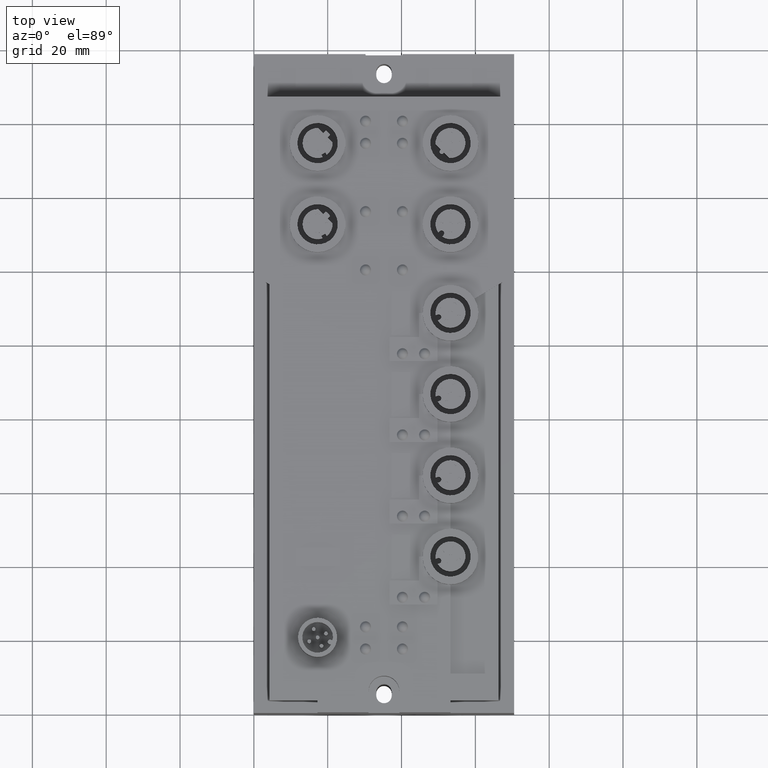
[diagram: clean part render]
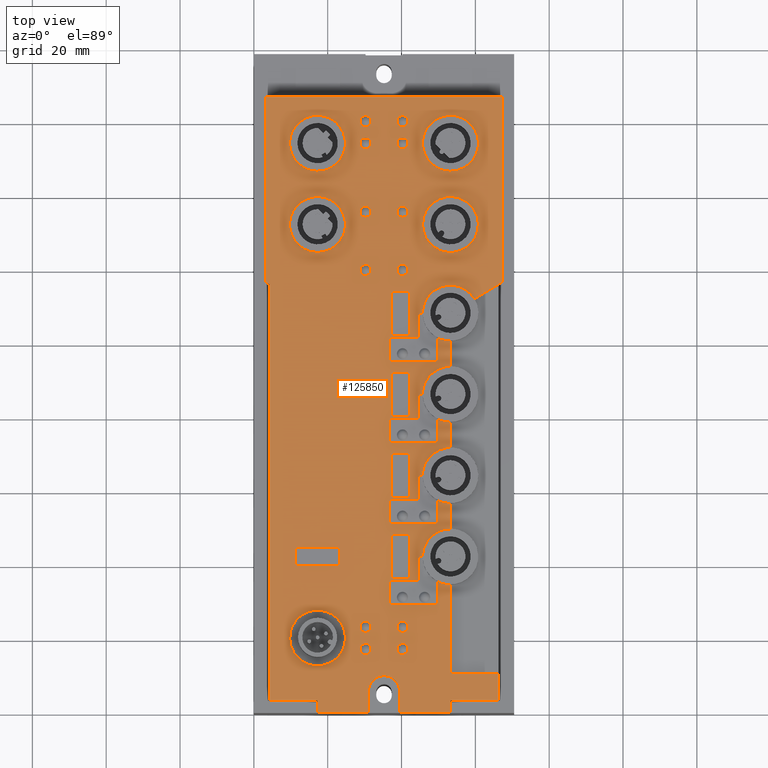
[diagram: same view with one face highlighted and labeled with its STEP entity id]
A machine part, top view. The second image highlights one B-rep face of the part: STEP entity #125850.
In plain terms, the highlighted planar face has unit normal (0, 0, -1).
Its self-contained STEP definition (entity closure, byte-faithful):
#2310=CARTESIAN_POINT('',(-28.,0.,3.93498908969668E-12));
#2320=DIRECTION('',(0.,-1.,-4.91276825878505E-14));
#2330=VECTOR('',#2320,1.);
#2340=LINE('',#2310,#2330);
#2350=CARTESIAN_POINT('',(-28.,-170.439730936293,-4.10771924135032E-12))
;
#2360=VERTEX_POINT('',#2350);
#2370=CARTESIAN_POINT('',(-28.,-176.75,-4.74911286628322E-12));
#2380=VERTEX_POINT('',#2370);
#2390=EDGE_CURVE('',#2360,#2380,#2340,.T.);
#5130=CARTESIAN_POINT('',(-35.9999999999976,-182.75,
-5.50504086760384E-12));
#5140=VERTEX_POINT('',#5130);
#5170=CARTESIAN_POINT('',(-39.0000000000026,-182.75,
-5.67479396806903E-12));
#5180=VERTEX_POINT('',#5170);
#5210=CARTESIAN_POINT('',(-37.5000000000001,-182.75,
-5.59030599589505E-12));
#5220=DIRECTION('',(5.76021672006006E-14,4.91276825878505E-14,-1.));
#5230=DIRECTION('',(1.,0.,5.76021672006006E-14));
#5240=AXIS2_PLACEMENT_3D('',#5210,#5220,#5230);
#5250=CIRCLE('',#5240,1.50000000000249);
#5260=EDGE_CURVE('',#5180,#5140,#5250,.T.);
#5430=CARTESIAN_POINT('',(0.,-170.25,-2.81613818926805E-12));
#5440=DIRECTION('',(1.,0.,5.76021672006006E-14));
#5450=VECTOR('',#5440,1.);
#5460=LINE('',#5430,#5450);
#5470=CARTESIAN_POINT('',(-41.,-170.25,-5.17861110307001E-12));
#5480=VERTEX_POINT('',#5470);
#5490=CARTESIAN_POINT('',(-33.0625113364745,-170.25,
-4.72139455392074E-12));
#5500=VERTEX_POINT('',#5490);
#5510=EDGE_CURVE('',#5480,#5500,#5460,.T.);
#5960=CARTESIAN_POINT('',(-18.0259284108704,-93.8655570465218,
-1.03685239121937E-13));
#5970=VERTEX_POINT('',#5960);
#6000=CARTESIAN_POINT('',(0.,-83.0499999999995,1.46779573239254E-12));
#6010=DIRECTION('',(-0.857492925712543,-0.514495755427529,
-7.4718009557273E-14));
#6020=VECTOR('',#6010,1.);
#6030=LINE('',#6000,#6020);
#6040=CARTESIAN_POINT('',(-10.5,-89.3499999999995,5.52089723060403E-13))
;
#6050=VERTEX_POINT('',#6040);
#6060=EDGE_CURVE('',#6050,#5970,#6030,.T.);
#7520=CARTESIAN_POINT('',(-24.5,0.,4.13659667489879E-12));
#7530=DIRECTION('',(0.,-1.,-4.91276825878505E-14));
#7540=VECTOR('',#7530,1.);
#7550=LINE('',#7520,#7540);
#7560=CARTESIAN_POINT('',(-24.5,-105.3,-1.03733236017919E-12));
#7570=VERTEX_POINT('',#7560);
#7580=CARTESIAN_POINT('',(-24.5,-112.2,-1.37631337003536E-12));
#7590=VERTEX_POINT('',#7580);
#7600=EDGE_CURVE('',#7570,#7590,#7550,.T.);
#10630=CARTESIAN_POINT('',(-33.0625113364745,-163.75,
-4.40206461709971E-12));
#10640=VERTEX_POINT('',#10630);
#10670=CARTESIAN_POINT('',(0.,-163.75,-2.49680825244702E-12));
#10680=DIRECTION('',(-1.,0.,-5.76021672006006E-14));
#10690=VECTOR('',#10680,1.);
#10700=LINE('',#10670,#10690);
#10710=CARTESIAN_POINT('',(-32.05,-163.75,-4.3437417698036E-12));
#10720=VERTEX_POINT('',#10710);
#10730=EDGE_CURVE('',#10720,#10640,#10700,.T.);
#11100=CARTESIAN_POINT('',(-33.0625113364745,-141.75,-3.321255600167E-12
));
#11110=VERTEX_POINT('',#11100);
#11140=CARTESIAN_POINT('',(0.,-141.75,-1.41599923551431E-12));
#11150=DIRECTION('',(-1.,0.,-5.76021672006006E-14));
#11160=VECTOR('',#11150,1.);
#11170=LINE('',#11140,#11160);
#11180=CARTESIAN_POINT('',(-32.05,-141.75,-2.99280606509251E-12));
#11190=VERTEX_POINT('',#11180);
#11200=EDGE_CURVE('',#11190,#11110,#11170,.T.);
#13950=CARTESIAN_POINT('',(-63.6907678761421,-178.907376207873,
-6.53210818768457E-12));
#13960=VERTEX_POINT('',#13950);
#13990=CARTESIAN_POINT('',(-60.4999999999998,-185.75,
-7.06257274885047E-12));
#14000=DIRECTION('',(1.22464679914825E-16,-7.75792454347579E-14,1.));
#14010=DIRECTION('',(-0.422618261740701,0.906307787036649,
7.03624300600987E-14));
#14020=AXIS2_PLACEMENT_3D('',#13990,#14000,#14010);
#14030=CIRCLE('',#14020,7.54999999999999);
#14040=CARTESIAN_POINT('',(-57.3092321238575,-192.592623792127,
-7.59381446613361E-12));
#14050=VERTEX_POINT('',#14040);
#14060=EDGE_CURVE('',#14050,#13960,#14030,.T.);
#14980=CARTESIAN_POINT('',(-24.5,-171.3,-4.04710226463371E-12));
#14990=VERTEX_POINT('',#14980);
#15140=CARTESIAN_POINT('',(-24.5,-195.475,-5.46742113753862E-12));
#15150=VERTEX_POINT('',#15140);
#15180=CARTESIAN_POINT('',(-24.5,0.,4.13659667489879E-12));
#15190=DIRECTION('',(0.,-1.,-4.91276825878505E-14));
#15200=VECTOR('',#15190,1.);
#15210=LINE('',#15180,#15200);
#15220=EDGE_CURVE('',#14990,#15150,#15210,.T.);
#21990=CARTESIAN_POINT('',(-38.3,-200.175,-6.49323115306981E-12));
#22000=VERTEX_POINT('',#21990);
#22030=CARTESIAN_POINT('',(-38.3,0.,3.3416867675305E-12));
#22040=DIRECTION('',(0.,1.,4.91276825878505E-14));
#22050=VECTOR('',#22040,1.);
#22060=LINE('',#22030,#22050);
#22070=CARTESIAN_POINT('',(-38.3,-205.925,-6.77571532794995E-12));
#22080=VERTEX_POINT('',#22070);
#22090=EDGE_CURVE('',#22080,#22000,#22060,.T.);
#25340=CARTESIAN_POINT('',(-46.7,-205.925,-7.259573532435E-12));
#25350=VERTEX_POINT('',#25340);
#25400=CARTESIAN_POINT('',(-46.7,0.,2.85782856304545E-12));
#25410=DIRECTION('',(0.,1.,4.91276825878505E-14));
#25420=VECTOR('',#25410,1.);
#25430=LINE('',#25400,#25420);
#25440=CARTESIAN_POINT('',(-46.7,-200.175,-6.73416877816635E-12));
#25450=VERTEX_POINT('',#25440);
#25460=EDGE_CURVE('',#25350,#25450,#25430,.T.);
#26570=CARTESIAN_POINT('',(-24.5,-141.75,-2.82729395451042E-12));
#26580=DIRECTION('',(-2.18191992668667E-14,-1.83084820574114E-14,1.));
#26590=DIRECTION('',(-0.90630778703665,0.4226182617407,
-1.20374113402516E-14));
#26600=AXIS2_PLACEMENT_3D('',#26570,#26580,#26590);
#26610=CIRCLE('',#26600,7.55);
#26620=CARTESIAN_POINT('',(-31.3426237921267,-138.559232123858,
-2.91822122022722E-12));
#26630=VERTEX_POINT('',#26620);
#26640=EDGE_CURVE('',#26630,#11190,#26610,.T.);
#28060=CARTESIAN_POINT('',(-24.5,-149.3,-2.96630015016112E-12));
#28070=VERTEX_POINT('',#28060);
#28100=CARTESIAN_POINT('',(-28.,-148.439730936293,-3.02691712687773E-12)
);
#28110=VERTEX_POINT('',#28100);
#28120=EDGE_CURVE('',#28110,#28070,#26610,.T.);
#30080=CARTESIAN_POINT('',(-33.0625113364745,-148.25,
-3.64058553698802E-12));
#30090=VERTEX_POINT('',#30080);
#30120=CARTESIAN_POINT('',(-33.0625113364745,0.,3.64337746523814E-12));
#30130=DIRECTION('',(0.,1.,4.91276825878505E-14));
#30140=VECTOR('',#30130,1.);
#30150=LINE('',#30120,#30140);
#30160=EDGE_CURVE('',#30090,#11110,#30150,.T.);
#30400=CARTESIAN_POINT('',(0.,-148.25,-1.73532917233534E-12));
#30410=DIRECTION('',(1.,0.,5.76021672006006E-14));
#30420=VECTOR('',#30410,1.);
#30430=LINE('',#30400,#30420);
#30440=CARTESIAN_POINT('',(-41.,-148.25,-4.09780208613729E-12));
#30450=VERTEX_POINT('',#30440);
#30460=EDGE_CURVE('',#30450,#30090,#30430,.T.);
#32170=CARTESIAN_POINT('',(-11.5,-202.675,-5.07231227856334E-12));
#32180=VERTEX_POINT('',#32170);
#32210=CARTESIAN_POINT('',(-11.5,0.,4.88542484850659E-12));
#32220=DIRECTION('',(-8.64591552122229E-28,1.,4.91276825878505E-14));
#32230=VECTOR('',#32220,1.);
#32240=LINE('',#32210,#32230);
#32250=CARTESIAN_POINT('',(-11.5,-195.475,-4.71859296393082E-12));
#32260=VERTEX_POINT('',#32250);
#32270=EDGE_CURVE('',#32180,#32260,#32240,.T.);
#33650=CARTESIAN_POINT('',(-60.4999999999997,-81.2999999999991,
-2.22488694134881E-12));
#33660=VERTEX_POINT('',#33650);
#33690=CARTESIAN_POINT('',(-60.4999999999997,-73.7499999999991,
-1.5603074388082E-12));
#33700=DIRECTION('',(3.28966126188549E-14,8.79173053052295E-14,-1.));
#33710=DIRECTION('',(-1.22464679913289E-16,-1.,-8.79173053052295E-14));
#33720=AXIS2_PLACEMENT_3D('',#33690,#33700,#33710);
#33730=CIRCLE('',#33720,7.54999999999999);
#33740=CARTESIAN_POINT('',(-60.4999999999997,-66.1999999999991,
-8.96505092384814E-13));
#33750=VERTEX_POINT('',#33740);
#33760=EDGE_CURVE('',#33660,#33750,#33730,.T.);
#37980=CARTESIAN_POINT('',(-54.4999999999986,0.,2.43733274248115E-12));
#37990=DIRECTION('',(-1.83697019872103E-16,-1.,-4.91276825878505E-14));
#38000=VECTOR('',#37990,1.);
#38010=LINE('',#37980,#38000);
#38020=CARTESIAN_POINT('',(-54.4999999999987,-161.25,
-5.51409121698737E-12));
#38030=VERTEX_POINT('',#38020);
#38040=CARTESIAN_POINT('',(-54.4999999999987,-166.25,
-5.75972962992662E-12));
#38050=VERTEX_POINT('',#38040);
#38060=EDGE_CURVE('',#38030,#38050,#38010,.T.);
#40210=CARTESIAN_POINT('',(-24.5000000000001,-44.1999999999995,
1.59339208494202E-12));
#40220=VERTEX_POINT('',#40210);
#40250=CARTESIAN_POINT('',(-24.5000000000001,-51.7499999999995,
1.59416924105926E-12));
#40260=DIRECTION('',(0.,0.,-1.));
#40270=DIRECTION('',(0.,1.,0.));
#40280=AXIS2_PLACEMENT_3D('',#40250,#40260,#40270);
#40290=CIRCLE('',#40280,7.54999999999999);
#40300=CARTESIAN_POINT('',(-24.5000000000001,-59.2999999999995,
1.59416924105926E-12));
#40310=VERTEX_POINT('',#40300);
#40320=EDGE_CURVE('',#40220,#40310,#40290,.T.);
#43730=CARTESIAN_POINT('',(-31.3426237921267,-94.5592321238575,
-7.56616991282044E-13));
#43740=VERTEX_POINT('',#43730);
#45010=CARTESIAN_POINT('',(-24.5,-97.7499999999998,-6.65689725565244E-13
));
#45020=DIRECTION('',(-2.18191992668667E-14,-1.83084820574114E-14,1.));
#45030=DIRECTION('',(-0.90630778703665,0.4226182617407,
-1.20374113402516E-14));
#45040=AXIS2_PLACEMENT_3D('',#45010,#45020,#45030);
#45050=CIRCLE('',#45040,7.55);
#45060=CARTESIAN_POINT('',(-28.,-104.439730936293,-8.65312897932552E-13)
);
#45070=VERTEX_POINT('',#45060);
#45080=EDGE_CURVE('',#45070,#7570,#45050,.T.);
#45310=CARTESIAN_POINT('',(-32.05,-97.75,-1.10131471900546E-12));
#45320=VERTEX_POINT('',#45310);
#45350=EDGE_CURVE('',#43740,#45320,#45050,.T.);
#49210=CARTESIAN_POINT('',(-41.,0.,3.18616091608887E-12));
#49220=DIRECTION('',(0.,-1.,-4.91276825878505E-14));
#49230=VECTOR('',#49220,1.);
#49240=LINE('',#49210,#49230);
#49250=CARTESIAN_POINT('',(-41.,-154.75,-4.41713202295832E-12));
#49260=VERTEX_POINT('',#49250);
#49270=EDGE_CURVE('',#30450,#49260,#49240,.T.);
#50570=CARTESIAN_POINT('',(0.,-154.75,-2.05465910915637E-12));
#50580=DIRECTION('',(1.,0.,5.76021672006006E-14));
#50590=VECTOR('',#50580,1.);
#50600=LINE('',#50570,#50590);
#50610=CARTESIAN_POINT('',(-28.,-154.75,-3.66830384935051E-12));
#50620=VERTEX_POINT('',#50610);
#50630=EDGE_CURVE('',#49260,#50620,#50600,.T.);
#50990=CARTESIAN_POINT('',(-41.,-176.75,-5.49794103989103E-12));
#51000=VERTEX_POINT('',#50990);
#51030=CARTESIAN_POINT('',(-41.,0.,3.18616091608887E-12));
#51040=DIRECTION('',(0.,-1.,-4.91276825878505E-14));
#51050=VECTOR('',#51040,1.);
#51060=LINE('',#51030,#51050);
#51070=EDGE_CURVE('',#5480,#51000,#51060,.T.);
#51750=CARTESIAN_POINT('',(-28.,0.,3.93498908969668E-12));
#51760=DIRECTION('',(0.,-1.,-4.91276825878505E-14));
#51770=VECTOR('',#51760,1.);
#51780=LINE('',#51750,#51770);
#51790=EDGE_CURVE('',#28110,#50620,#51780,.T.);
#52180=CARTESIAN_POINT('',(-33.0625113364745,-119.75,
-2.24044658323428E-12));
#52190=VERTEX_POINT('',#52180);
#52220=CARTESIAN_POINT('',(0.,-119.75,-3.351902185816E-13));
#52230=DIRECTION('',(-1.,0.,-5.76021672006006E-14));
#52240=VECTOR('',#52230,1.);
#52250=LINE('',#52220,#52240);
#52260=CARTESIAN_POINT('',(-32.05,-119.75,-2.18212373593817E-12));
#52270=VERTEX_POINT('',#52260);
#52280=EDGE_CURVE('',#52270,#52190,#52250,.T.);
#52550=CARTESIAN_POINT('',(-60.5000000000001,-202.675,
-7.89481847139278E-12));
#52560=VERTEX_POINT('',#52550);
#52730=CARTESIAN_POINT('',(-73.5000000000001,-202.675,
-8.64364664500058E-12));
#52740=VERTEX_POINT('',#52730);
#52770=CARTESIAN_POINT('',(0.,-202.675,-4.40910329717911E-12));
#52780=DIRECTION('',(-1.,2.29085206876182E-27,-5.76021672006006E-14));
#52790=VECTOR('',#52780,1.);
#52800=LINE('',#52770,#52790);
#52810=EDGE_CURVE('',#52560,#52740,#52800,.T.);
#53520=CARTESIAN_POINT('',(-28.,0.,3.93498908969668E-12));
#53530=DIRECTION('',(0.,-1.,-4.91276825878505E-14));
#53540=VECTOR('',#53530,1.);
#53550=LINE('',#53520,#53540);
#53560=CARTESIAN_POINT('',(-28.,-126.439730936293,-1.94611501240514E-12)
);
#53570=VERTEX_POINT('',#53560);
#53580=CARTESIAN_POINT('',(-28.,-132.75,-2.5874948324178E-12));
#53590=VERTEX_POINT('',#53580);
#53600=EDGE_CURVE('',#53570,#53590,#53550,.T.);
#54370=CARTESIAN_POINT('',(-74.5,-89.3499999999995,-3.13385418293299E-12
));
#54380=VERTEX_POINT('',#54370);
#54550=CARTESIAN_POINT('',(-74.5,-39.075,-6.63959940828834E-13));
#54560=VERTEX_POINT('',#54550);
#54590=CARTESIAN_POINT('',(-74.5,0.,1.25648831486875E-12));
#54600=DIRECTION('',(0.,1.,4.91276825878505E-14));
#54610=VECTOR('',#54600,1.);
#54620=LINE('',#54590,#54610);
#54630=EDGE_CURVE('',#54380,#54560,#54620,.T.);
#54930=CARTESIAN_POINT('',(-24.5,-202.675,-5.82114045217115E-12));
#54940=VERTEX_POINT('',#54930);
#54970=CARTESIAN_POINT('',(0.,-202.675,-4.40910329717911E-12));
#54980=DIRECTION('',(1.,-5.49047190033824E-28,5.76021672006006E-14));
#54990=VECTOR('',#54980,1.);
#55000=LINE('',#54970,#54990);
#55010=EDGE_CURVE('',#54940,#32180,#55000,.T.);
#55800=CARTESIAN_POINT('',(0.,-176.75,-3.13546812608908E-12));
#55810=DIRECTION('',(1.,0.,5.76021672006006E-14));
#55820=VECTOR('',#55810,1.);
#55830=LINE('',#55800,#55820);
#55840=EDGE_CURVE('',#51000,#2380,#55830,.T.);
#61030=CARTESIAN_POINT('',(-47.5,-188.75,-6.46116493641102E-12));
#61040=DIRECTION('',(5.76021672006006E-14,4.91276825878505E-14,-1.));
#61050=DIRECTION('',(1.,0.,5.76021672006006E-14));
#61060=AXIS2_PLACEMENT_3D('',#61030,#61040,#61050);
#61070=CIRCLE('',#61060,1.50000000000349);
#61080=CARTESIAN_POINT('',(-47.5,-190.250000000004,-6.53563361641021E-12
));
#61090=VERTEX_POINT('',#61080);
#61100=CARTESIAN_POINT('',(-49.0000000000035,-188.75,
-6.54765131002932E-12));
#61110=VERTEX_POINT('',#61100);
#61120=EDGE_CURVE('',#61090,#61110,#61070,.T.);
#61230=CARTESIAN_POINT('',(-45.9999999999965,-188.75,
-6.37723207574936E-12));
#61240=VERTEX_POINT('',#61230);
#61270=EDGE_CURVE('',#61240,#61090,#61070,.T.);
#62610=CARTESIAN_POINT('',(-42.5,-200.175,-6.73416877816635E-12));
#62620=DIRECTION('',(0.,0.,-1.));
#62630=DIRECTION('',(1.,0.,0.));
#62640=AXIS2_PLACEMENT_3D('',#62610,#62620,#62630);
#62650=CIRCLE('',#62640,4.2);
#62660=EDGE_CURVE('',#25450,#22000,#62650,.T.);
#64540=CARTESIAN_POINT('',(-33.0625113364745,0.,3.64337746523814E-12));
#64550=DIRECTION('',(0.,1.,4.91276825878505E-14));
#64560=VECTOR('',#64550,1.);
#64570=LINE('',#64540,#64560);
#64580=EDGE_CURVE('',#5500,#10640,#64570,.T.);
#66090=CARTESIAN_POINT('',(-16.95,-73.7499999999998,6.78124223441046E-13
));
#66100=VERTEX_POINT('',#66090);
#66320=CARTESIAN_POINT('',(-32.05,-73.7499999999998,3.47832873615062E-13
));
#66330=VERTEX_POINT('',#66320);
#66360=CARTESIAN_POINT('',(-24.5,-73.7499999999998,5.13367126586672E-13)
);
#66370=DIRECTION('',(-2.18191992668667E-14,-1.83084820574114E-14,1.));
#66380=DIRECTION('',(-1.,0.,-2.18191992668667E-14));
#66390=AXIS2_PLACEMENT_3D('',#66360,#66370,#66380);
#66400=CIRCLE('',#66390,7.55);
#66410=EDGE_CURVE('',#66100,#66330,#66400,.T.);
#67380=CARTESIAN_POINT('',(-10.5,-39.075,3.02257876000961E-12));
#67390=VERTEX_POINT('',#67380);
#67420=CARTESIAN_POINT('',(0.,-39.075,3.62818557419324E-12));
#67430=DIRECTION('',(-1.,0.,-5.76021672006006E-14));
#67440=VECTOR('',#67430,1.);
#67450=LINE('',#67420,#67440);
#67460=EDGE_CURVE('',#67390,#54560,#67450,.T.);
#70580=CARTESIAN_POINT('',(-66.4999999999987,-166.25,
-6.45095563633383E-12));
#70590=VERTEX_POINT('',#70580);
#70690=CARTESIAN_POINT('',(0.,-166.25,-2.61962745891664E-12));
#70700=DIRECTION('',(1.,-1.22464679914735E-16,5.76021672006006E-14));
#70710=VECTOR('',#70700,1.);
#70720=LINE('',#70690,#70710);
#70730=EDGE_CURVE('',#70590,#38050,#70720,.T.);
#71810=CARTESIAN_POINT('',(-33.0625113364745,0.,3.64337746523814E-12));
#71820=DIRECTION('',(0.,1.,4.91276825878505E-14));
#71830=VECTOR('',#71820,1.);
#71840=LINE('',#71810,#71830);
#71850=CARTESIAN_POINT('',(-33.0625113364745,-126.25,
-2.55977652005531E-12));
#71860=VERTEX_POINT('',#71850);
#71870=EDGE_CURVE('',#71860,#52190,#71840,.T.);
#72110=CARTESIAN_POINT('',(-24.5,-205.925,-5.98080542058166E-12));
#72120=VERTEX_POINT('',#72110);
#72150=CARTESIAN_POINT('',(-24.5,0.,4.13659667489879E-12));
#72160=DIRECTION('',(0.,-1.,-4.91276825878505E-14));
#72170=VECTOR('',#72160,1.);
#72180=LINE('',#72150,#72170);
#72190=EDGE_CURVE('',#54940,#72120,#72180,.T.);
#73910=CARTESIAN_POINT('',(0.,-126.25,-6.54520155402632E-13));
#73920=DIRECTION('',(-1.,0.,-5.76021672006006E-14));
#73930=VECTOR('',#73920,1.);
#73940=LINE('',#73910,#73930);
#73950=CARTESIAN_POINT('',(-41.,-126.25,-3.01699306920458E-12));
#73960=VERTEX_POINT('',#73950);
#73970=EDGE_CURVE('',#71860,#73960,#73940,.T.);
#74260=CARTESIAN_POINT('',(-33.0625113364745,-97.75,
-1.15963756630157E-12));
#74270=VERTEX_POINT('',#74260);
#74350=CARTESIAN_POINT('',(-33.0625113364745,-104.25,
-1.4789675031226E-12));
#74360=VERTEX_POINT('',#74350);
#74390=CARTESIAN_POINT('',(-33.0625113364745,0.,3.64337746523814E-12));
#74400=DIRECTION('',(0.,1.,4.91276825878505E-14));
#74410=VECTOR('',#74400,1.);
#74420=LINE('',#74390,#74410);
#74430=EDGE_CURVE('',#74360,#74270,#74420,.T.);
#81390=CARTESIAN_POINT('',(-73.5000000000001,-89.9499999999994,
-3.1057286252851E-12));
#81400=VERTEX_POINT('',#81390);
#81450=CARTESIAN_POINT('',(0.,-134.05,-1.03771607958786E-12));
#81460=DIRECTION('',(0.857492925712543,-0.514495755427529,
2.41195952099815E-14));
#81470=VECTOR('',#81460,1.);
#81480=LINE('',#81450,#81470);
#81490=EDGE_CURVE('',#54380,#81400,#81480,.T.);
#81610=CARTESIAN_POINT('',(-24.5,0.,4.13659667489879E-12));
#81620=DIRECTION('',(0.,-1.,-4.91276825878505E-14));
#81630=VECTOR('',#81620,1.);
#81640=LINE('',#81610,#81630);
#81650=CARTESIAN_POINT('',(-24.5,-156.2,-3.77064418556679E-12));
#81660=VERTEX_POINT('',#81650);
#81670=EDGE_CURVE('',#28070,#81660,#81640,.T.);
#82230=CARTESIAN_POINT('',(0.,-132.75,-9.73850092223657E-13));
#82240=DIRECTION('',(1.,0.,5.76021672006006E-14));
#82250=VECTOR('',#82240,1.);
#82260=LINE('',#82230,#82250);
#82270=CARTESIAN_POINT('',(-41.,-132.75,-3.33632300602561E-12));
#82280=VERTEX_POINT('',#82270);
#82290=EDGE_CURVE('',#82280,#53590,#82260,.T.);
#83040=CARTESIAN_POINT('',(-24.5,-119.75,-1.74649184003783E-12));
#83050=DIRECTION('',(-2.18191992668667E-14,-1.83084820574114E-14,1.));
#83060=DIRECTION('',(-0.90630778703665,0.4226182617407,
-1.20374113402516E-14));
#83070=AXIS2_PLACEMENT_3D('',#83040,#83050,#83060);
#83080=CIRCLE('',#83070,7.55);
#83090=CARTESIAN_POINT('',(-24.5,-127.3,-1.88549803568853E-12));
#83100=VERTEX_POINT('',#83090);
#83110=EDGE_CURVE('',#53570,#83100,#83080,.T.);
#83160=CARTESIAN_POINT('',(-31.3426237921267,-116.559232123858,
-1.83741910575463E-12));
#83170=VERTEX_POINT('',#83160);
#83180=EDGE_CURVE('',#83170,#52270,#83080,.T.);
#84580=CARTESIAN_POINT('',(-41.,0.,3.18616091608887E-12));
#84590=DIRECTION('',(0.,-1.,-4.91276825878505E-14));
#84600=VECTOR('',#84590,1.);
#84610=LINE('',#84580,#84600);
#84620=EDGE_CURVE('',#73960,#82280,#84610,.T.);
#85420=CARTESIAN_POINT('',(-24.5,-134.2,-2.6898420710942E-12));
#85430=VERTEX_POINT('',#85420);
#85460=CARTESIAN_POINT('',(-24.5,0.,4.13659667489879E-12));
#85470=DIRECTION('',(0.,-1.,-4.91276825878505E-14));
#85480=VECTOR('',#85470,1.);
#85490=LINE('',#85460,#85480);
#85500=EDGE_CURVE('',#83100,#85430,#85490,.T.);
#85680=CARTESIAN_POINT('',(-37.5,-188.75,-5.88507020893303E-12));
#85690=DIRECTION('',(5.76021672006006E-14,4.91276825878505E-14,-1.));
#85700=DIRECTION('',(1.,0.,5.76021672006006E-14));
#85710=AXIS2_PLACEMENT_3D('',#85680,#85690,#85700);
#85720=CIRCLE('',#85710,1.50000000000318);
#85730=CARTESIAN_POINT('',(-37.5,-190.250000000003,-5.9595388889322E-12)
);
#85740=VERTEX_POINT('',#85730);
#85750=CARTESIAN_POINT('',(-39.0000000000032,-188.75,
-5.96944715880454E-12));
#85760=VERTEX_POINT('',#85750);
#85770=EDGE_CURVE('',#85740,#85760,#85720,.T.);
#85880=CARTESIAN_POINT('',(-35.9999999999968,-188.75,
-5.79902792452458E-12));
#85890=VERTEX_POINT('',#85880);
#85920=EDGE_CURVE('',#85890,#85740,#85720,.T.);
#86240=CARTESIAN_POINT('',(0.,-97.75,7.45618798351112E-13));
#86250=DIRECTION('',(-1.,0.,-5.76021672006006E-14));
#86260=VECTOR('',#86250,1.);
#86270=LINE('',#86240,#86260);
#86280=EDGE_CURVE('',#45320,#74270,#86270,.T.);
#102230=CARTESIAN_POINT('',(0.,-161.25,-2.37398904597739E-12));
#102240=DIRECTION('',(-1.,1.22464679914735E-16,-5.76021672006006E-14));
#102250=VECTOR('',#102240,1.);
#102260=LINE('',#102230,#102250);
#102270=CARTESIAN_POINT('',(-66.4999999999987,-161.25,
-6.20531722339458E-12));
#102280=VERTEX_POINT('',#102270);
#102290=EDGE_CURVE('',#38030,#102280,#102260,.T.);
#103110=CARTESIAN_POINT('',(-66.4999999999986,0.,1.68850456887334E-12));
#103120=DIRECTION('',(-1.83697019872103E-16,-1.,-4.91276825878505E-14));
#103130=VECTOR('',#103120,1.);
#103140=LINE('',#103110,#103130);
#103150=EDGE_CURVE('',#102280,#70590,#103140,.T.);
#103930=CARTESIAN_POINT('',(0.,-110.75,1.06958924709055E-13));
#103940=DIRECTION('',(1.,0.,5.76021672006006E-14));
#103950=VECTOR('',#103940,1.);
#103960=LINE('',#103930,#103950);
#103970=CARTESIAN_POINT('',(-41.,-110.75,-2.2555139890929E-12));
#103980=VERTEX_POINT('',#103970);
#103990=CARTESIAN_POINT('',(-28.,-110.75,-1.50668581548509E-12));
#104000=VERTEX_POINT('',#103990);
#104010=EDGE_CURVE('',#103980,#104000,#103960,.T.);
#104310=CARTESIAN_POINT('',(-41.,0.,3.18616091608887E-12));
#104320=DIRECTION('',(0.,-1.,-4.91276825878505E-14));
#104330=VECTOR('',#104320,1.);
#104340=LINE('',#104310,#104330);
#104350=CARTESIAN_POINT('',(-41.,-104.25,-1.93618405227187E-12));
#104360=VERTEX_POINT('',#104350);
#104370=EDGE_CURVE('',#104360,#103980,#104340,.T.);
#105070=CARTESIAN_POINT('',(-28.,0.,3.93498908969668E-12));
#105080=DIRECTION('',(0.,-1.,-4.91276825878505E-14));
#105090=VECTOR('',#105080,1.);
#105100=LINE('',#105070,#105090);
#105110=EDGE_CURVE('',#45070,#104000,#105100,.T.);
#106540=CARTESIAN_POINT('',(-10.5,0.,4.94302701570719E-12));
#106550=DIRECTION('',(0.,1.,4.91276825878505E-14));
#106560=VECTOR('',#106550,1.);
#106570=LINE('',#106540,#106560);
#106580=EDGE_CURVE('',#6050,#67390,#106570,.T.);
#107370=CARTESIAN_POINT('',(0.,-195.475,-4.05538398254658E-12));
#107380=DIRECTION('',(-1.,0.,-5.76021672006006E-14));
#107390=VECTOR('',#107380,1.);
#107400=LINE('',#107370,#107390);
#107410=EDGE_CURVE('',#32260,#15150,#107400,.T.);
#111020=CARTESIAN_POINT('',(-60.5000000000001,-205.925,
-8.05448343980329E-12));
#111030=VERTEX_POINT('',#111020);
#111060=CARTESIAN_POINT('',(0.,-205.925,-4.56876826558962E-12));
#111070=DIRECTION('',(1.,0.,5.76021672006006E-14));
#111080=VECTOR('',#111070,1.);
#111090=LINE('',#111060,#111080);
#111100=EDGE_CURVE('',#111030,#25350,#111090,.T.);
#111150=EDGE_CURVE('',#22080,#72120,#111090,.T.);
#111720=CARTESIAN_POINT('',(0.,-104.25,4.26288861530081E-13));
#111730=DIRECTION('',(1.,0.,5.76021672006006E-14));
#111740=VECTOR('',#111730,1.);
#111750=LINE('',#111720,#111740);
#111760=EDGE_CURVE('',#104360,#74360,#111750,.T.);
#112390=CARTESIAN_POINT('',(-24.5,-163.75,-3.90809606898301E-12));
#112400=DIRECTION('',(-2.18191992668667E-14,-1.83084820574114E-14,1.));
#112410=DIRECTION('',(-0.90630778703665,0.4226182617407,
-1.20374113402516E-14));
#112420=AXIS2_PLACEMENT_3D('',#112390,#112400,#112410);
#112430=CIRCLE('',#112420,7.55);
#112440=EDGE_CURVE('',#2360,#14990,#112430,.T.);
#112490=CARTESIAN_POINT('',(-31.3426237921267,-160.559232123858,
-3.99902333469981E-12));
#112500=VERTEX_POINT('',#112490);
#112510=EDGE_CURVE('',#112500,#10720,#112430,.T.);
#113780=CARTESIAN_POINT('',(-60.4999999999999,-59.2999999999996,
-1.14408482687622E-12));
#113790=VERTEX_POINT('',#113780);
#113820=CARTESIAN_POINT('',(-60.4999999999999,-51.7499999999996,
-4.80282480452843E-13));
#113830=DIRECTION('',(3.28966126188549E-14,8.79173053052295E-14,-1.));
#113840=DIRECTION('',(-1.22464679913289E-16,-1.,-8.79173053052295E-14));
#113850=AXIS2_PLACEMENT_3D('',#113820,#113830,#113840);
#113860=CIRCLE('',#113850,7.54999999999999);
#113870=CARTESIAN_POINT('',(-60.4999999999999,-44.1999999999996,
1.83519865970538E-13));
#113880=VERTEX_POINT('',#113870);
#113890=EDGE_CURVE('',#113790,#113880,#113860,.T.);
#115390=CARTESIAN_POINT('',(-46.0000000000003,-86.05,
-1.33237865185265E-12));
#115400=VERTEX_POINT('',#115390);
#115430=CARTESIAN_POINT('',(-48.9999999999998,-86.05,
-1.50213175231784E-12));
#115440=VERTEX_POINT('',#115430);
#115470=CARTESIAN_POINT('',(-47.5000000000001,-86.05,-1.415756401002E-12
));
#115480=DIRECTION('',(5.76021672006006E-14,4.91276825878505E-14,-1.));
#115490=DIRECTION('',(1.,0.,5.76021672006006E-14));
#115500=AXIS2_PLACEMENT_3D('',#115470,#115480,#115490);
#115510=CIRCLE('',#115500,1.49999999999976);
#115520=EDGE_CURVE('',#115440,#115400,#115510,.T.);
#115690=CARTESIAN_POINT('',(-37.5000000000001,-86.05,
-8.39661673524006E-13));
#115700=DIRECTION('',(5.76021672006006E-14,4.91276825878505E-14,-1.));
#115710=DIRECTION('',(1.,0.,5.76021672006006E-14));
#115720=AXIS2_PLACEMENT_3D('',#115690,#115700,#115710);
#115730=CIRCLE('',#115720,1.49999999999945);
#115740=CARTESIAN_POINT('',(-37.5,-87.5499999999995,
-9.14130353522989E-13));
#115750=VERTEX_POINT('',#115740);
#115760=CARTESIAN_POINT('',(-38.9999999999995,-86.05,
-9.2326146727828E-13));
#115770=VERTEX_POINT('',#115760);
#115780=EDGE_CURVE('',#115750,#115770,#115730,.T.);
#115890=CARTESIAN_POINT('',(-36.0000000000006,-86.05,
-7.52842232998319E-13));
#115900=VERTEX_POINT('',#115890);
#115930=EDGE_CURVE('',#115900,#115750,#115730,.T.);
#116170=CARTESIAN_POINT('',(-46.0000000000009,-45.75,
6.50035580918029E-13));
#116180=VERTEX_POINT('',#116170);
#116210=CARTESIAN_POINT('',(-48.9999999999993,-45.75,
4.79616346638068E-13));
#116220=VERTEX_POINT('',#116210);
#116250=CARTESIAN_POINT('',(-47.5000000000001,-45.75,
5.64104318812042E-13));
#116260=DIRECTION('',(5.76021672006006E-14,4.91276825878505E-14,-1.));
#116270=DIRECTION('',(1.,0.,5.76021672006006E-14));
#116280=AXIS2_PLACEMENT_3D('',#116250,#116260,#116270);
#116290=CIRCLE('',#116280,1.49999999999921);
#116300=EDGE_CURVE('',#116220,#116180,#116290,.T.);
#116540=CARTESIAN_POINT('',(-36.0000000000012,-45.75,
1.22568621918617E-12));
#116550=VERTEX_POINT('',#116540);
#116580=CARTESIAN_POINT('',(-38.999999999999,-45.75,1.05515596260375E-12
));
#116590=VERTEX_POINT('',#116580);
#116620=CARTESIAN_POINT('',(-37.5000000000001,-45.75,
1.14019904629004E-12));
#116630=DIRECTION('',(5.76021672006006E-14,4.91276825878505E-14,-1.));
#116640=DIRECTION('',(1.,0.,5.76021672006006E-14));
#116650=AXIS2_PLACEMENT_3D('',#116620,#116630,#116640);
#116660=CIRCLE('',#116650,1.4999999999989);
#116670=EDGE_CURVE('',#116590,#116550,#116660,.T.);
#116910=CARTESIAN_POINT('',(-36.000000000001,-70.25,2.12052597703405E-14
));
#116920=VERTEX_POINT('',#116910);
#116950=CARTESIAN_POINT('',(-38.9999999999991,-70.25,
-1.47881706880071E-13));
#116960=VERTEX_POINT('',#116950);
#116990=CARTESIAN_POINT('',(-37.5000000000001,-70.25,
-6.3504757008559E-14));
#117000=DIRECTION('',(5.76021672006006E-14,4.91276825878505E-14,-1.));
#117010=DIRECTION('',(1.,0.,5.76021672006006E-14));
#117020=AXIS2_PLACEMENT_3D('',#116990,#117000,#117010);
#117030=CIRCLE('',#117020,1.49999999999904);
#117040=EDGE_CURVE('',#116960,#116920,#117030,.T.);
#117280=CARTESIAN_POINT('',(-46.0000000000007,-70.25,
-5.56998891454441E-13));
#117290=VERTEX_POINT('',#117280);
#117320=CARTESIAN_POINT('',(-48.9999999999994,-70.25,
-7.23421322845752E-13));
#117330=VERTEX_POINT('',#117320);
#117360=CARTESIAN_POINT('',(-47.5000000000001,-70.25,
-6.3948846218409E-13));
#117370=DIRECTION('',(5.76021672006006E-14,4.91276825878505E-14,-1.));
#117380=DIRECTION('',(1.,0.,5.76021672006006E-14));
#117390=AXIS2_PLACEMENT_3D('',#117360,#117370,#117380);
#117400=CIRCLE('',#117390,1.49999999999934);
#117410=EDGE_CURVE('',#117330,#117290,#117400,.T.);
#117650=CARTESIAN_POINT('',(-36.0000000000004,-51.7499999999995,
9.30255872333419E-13));
#117660=VERTEX_POINT('',#117650);
#117690=CARTESIAN_POINT('',(-38.9999999999996,-51.7499999999995,
7.60613794170695E-13));
#117700=VERTEX_POINT('',#117690);
#117730=CARTESIAN_POINT('',(-37.5,-51.7499999999996,8.45434833252057E-13
));
#117740=DIRECTION('',(5.76021672006006E-14,4.91276825878505E-14,-1.));
#117750=DIRECTION('',(1.,0.,5.76021672006006E-14));
#117760=AXIS2_PLACEMENT_3D('',#117730,#117740,#117750);
#117770=CIRCLE('',#117760,1.49999999999959);
#117780=EDGE_CURVE('',#117700,#117660,#117770,.T.);
#117950=CARTESIAN_POINT('',(-47.5,-51.7499999999996,2.69340105774063E-13
));
#117960=DIRECTION('',(5.76021672006006E-14,4.91276825878505E-14,-1.));
#117970=DIRECTION('',(1.,0.,5.76021672006006E-14));
#117980=AXIS2_PLACEMENT_3D('',#117950,#117960,#117970);
#117990=CIRCLE('',#117980,1.4999999999999);
#118000=CARTESIAN_POINT('',(-47.5,-53.2499999999995,1.94871425775055E-13
));
#118010=VERTEX_POINT('',#118000);
#118020=CARTESIAN_POINT('',(-48.9999999999999,-51.7499999999995,
1.84963155902551E-13));
#118030=VERTEX_POINT('',#118020);
#118040=EDGE_CURVE('',#118010,#118030,#117990,.T.);
#118150=CARTESIAN_POINT('',(-46.0000000000001,-51.7499999999995,
3.56048523997288E-13));
#118160=VERTEX_POINT('',#118150);
#118190=EDGE_CURVE('',#118160,#118010,#117990,.T.);
#120280=CARTESIAN_POINT('',(-45.9999999999973,-182.75,
-6.08324501882862E-12));
#120290=VERTEX_POINT('',#120280);
#120320=CARTESIAN_POINT('',(-49.0000000000029,-182.75,
-6.25299811929381E-12));
#120330=VERTEX_POINT('',#120320);
#120360=CARTESIAN_POINT('',(-47.5000000000001,-182.75,
-6.16640072337304E-12));
#120370=DIRECTION('',(5.76021672006006E-14,4.91276825878505E-14,-1.));
#120380=DIRECTION('',(1.,0.,5.76021672006006E-14));
#120390=AXIS2_PLACEMENT_3D('',#120360,#120370,#120380);
#120400=CIRCLE('',#120390,1.5000000000028);
#120410=EDGE_CURVE('',#120330,#120290,#120400,.T.);
#120610=CARTESIAN_POINT('',(-73.5000000000001,0.,1.31409048206935E-12));
#120620=DIRECTION('',(8.64591552122229E-28,1.,4.91276825878505E-14));
#120630=VECTOR('',#120620,1.);
#120640=LINE('',#120610,#120630);
#120650=EDGE_CURVE('',#52740,#81400,#120640,.T.);
#121550=CARTESIAN_POINT('',(-60.5000000000001,0.,2.06291865567716E-12));
#121560=DIRECTION('',(0.,-1.,-4.91276825878505E-14));
#121570=VECTOR('',#121560,1.);
#121580=LINE('',#121550,#121570);
#121590=EDGE_CURVE('',#52560,#111030,#121580,.T.);
#122860=CARTESIAN_POINT('',(32.2168879110567,61.1191380540436,
1.04054698912339E-11));
#122870=DIRECTION('',(5.76021672006006E-14,4.91276825878505E-14,-1.));
#122880=DIRECTION('',(0.90630778703665,-0.4226182617407,
3.14430368654652E-14));
#122890=AXIS2_PLACEMENT_3D('',#122860,#122870,#122880);
#122900=PLANE('',#122890);
#122910=EDGE_CURVE('',#85760,#85890,#85720,.T.);
#122920=ORIENTED_EDGE('',*,*,#122910,.T.);
#122930=ORIENTED_EDGE('',*,*,#85770,.T.);
#122940=ORIENTED_EDGE('',*,*,#85920,.T.);
#122950=EDGE_LOOP('',(#122940,#122930,#122920));
#122960=FACE_BOUND('',#122950,.T.);
#122970=EDGE_CURVE('',#115770,#115900,#115730,.T.);
#122980=ORIENTED_EDGE('',*,*,#122970,.T.);
#122990=ORIENTED_EDGE('',*,*,#115780,.T.);
#123000=ORIENTED_EDGE('',*,*,#115930,.T.);
#123010=EDGE_LOOP('',(#123000,#122990,#122980));
#123020=FACE_BOUND('',#123010,.T.);
#123030=EDGE_CURVE('',#118030,#118160,#117990,.T.);
#123040=ORIENTED_EDGE('',*,*,#123030,.T.);
#123050=ORIENTED_EDGE('',*,*,#118040,.T.);
#123060=ORIENTED_EDGE('',*,*,#118190,.T.);
#123070=EDGE_LOOP('',(#123060,#123050,#123040));
#123080=FACE_BOUND('',#123070,.T.);
#123090=EDGE_CURVE('',#117290,#117330,#117400,.T.);
#123100=ORIENTED_EDGE('',*,*,#123090,.T.);
#123110=ORIENTED_EDGE('',*,*,#117410,.T.);
#123120=EDGE_LOOP('',(#123110,#123100));
#123130=FACE_BOUND('',#123120,.T.);
#123140=EDGE_CURVE('',#116180,#116220,#116290,.T.);
#123150=ORIENTED_EDGE('',*,*,#123140,.T.);
#123160=ORIENTED_EDGE('',*,*,#116300,.T.);
#123170=EDGE_LOOP('',(#123160,#123150));
#123180=FACE_BOUND('',#123170,.T.);
#123190=CARTESIAN_POINT('',(-40.4500000000001,0.,3.2178421080492E-12));
#123200=DIRECTION('',(6.12323399562695E-17,1.,4.91276825878505E-14));
#123210=VECTOR('',#123200,1.);
#123220=LINE('',#123190,#123210);
#123230=CARTESIAN_POINT('',(-40.4500000000001,-147.75,
-4.04155705288304E-12));
#123240=VERTEX_POINT('',#123230);
#123250=CARTESIAN_POINT('',(-40.4500000000001,-135.75,
-3.45202486182884E-12));
#123260=VERTEX_POINT('',#123250);
#123270=EDGE_CURVE('',#123240,#123260,#123220,.T.);
#123280=ORIENTED_EDGE('',*,*,#123270,.T.);
#123290=CARTESIAN_POINT('',(0.,-147.75,-1.71076533104142E-12));
#123300=DIRECTION('',(-1.,2.31883165387161E-16,-5.76021672006006E-14));
#123310=VECTOR('',#123300,1.);
#123320=LINE('',#123290,#123310);
#123330=CARTESIAN_POINT('',(-35.4500000000001,-147.75,
-3.75354621688004E-12));
#123340=VERTEX_POINT('',#123330);
#123350=EDGE_CURVE('',#123340,#123240,#123320,.T.);
#123360=ORIENTED_EDGE('',*,*,#123350,.T.);
#123370=CARTESIAN_POINT('',(-35.4500000000001,0.,3.5058529440522E-12));
#123380=DIRECTION('',(-6.12323399562695E-17,-1.,-4.91276825878505E-14));
#123390=VECTOR('',#123380,1.);
#123400=LINE('',#123370,#123390);
#123410=CARTESIAN_POINT('',(-35.4500000000001,-135.75,
-3.16401402582583E-12));
#123420=VERTEX_POINT('',#123410);
#123430=EDGE_CURVE('',#123420,#123340,#123400,.T.);
#123440=ORIENTED_EDGE('',*,*,#123430,.T.);
#123450=CARTESIAN_POINT('',(0.,-135.75,-1.12123313998721E-12));
#123460=DIRECTION('',(1.,4.78659570373101E-16,5.76021672006006E-14));
#123470=VECTOR('',#123460,1.);
#123480=LINE('',#123450,#123470);
#123490=EDGE_CURVE('',#123260,#123420,#123480,.T.);
#123500=ORIENTED_EDGE('',*,*,#123490,.T.);
#123510=EDGE_LOOP('',(#123500,#123440,#123360,#123280));
#123520=FACE_BOUND('',#123510,.T.);
#123530=CARTESIAN_POINT('',(-35.4500000000001,0.,3.5058529440522E-12));
#123540=DIRECTION('',(-6.12323399562695E-17,-1.,-4.91276825878505E-14));
#123550=VECTOR('',#123540,1.);
#123560=LINE('',#123530,#123550);
#123570=CARTESIAN_POINT('',(-35.4500000000001,-113.75,
-2.08320500889312E-12));
#123580=VERTEX_POINT('',#123570);
#123590=CARTESIAN_POINT('',(-35.4500000000001,-125.75,
-2.67273719994733E-12));
#123600=VERTEX_POINT('',#123590);
#123610=EDGE_CURVE('',#123580,#123600,#123560,.T.);
#123620=ORIENTED_EDGE('',*,*,#123610,.T.);
#123630=CARTESIAN_POINT('',(0.,-113.75,-4.04241230544994E-14));
#123640=DIRECTION('',(1.,-9.42425901147426E-16,5.76021672006005E-14));
#123650=VECTOR('',#123640,1.);
#123660=LINE('',#123630,#123650);
#123670=CARTESIAN_POINT('',(-40.4500000000001,-113.75,
-2.37121584489613E-12));
#123680=VERTEX_POINT('',#123670);
#123690=EDGE_CURVE('',#123680,#123580,#123660,.T.);
#123700=ORIENTED_EDGE('',*,*,#123690,.T.);
#123710=CARTESIAN_POINT('',(-40.4500000000001,0.,3.2178421080492E-12));
#123720=DIRECTION('',(6.12323399562695E-17,1.,4.91276825878505E-14));
#123730=VECTOR('',#123720,1.);
#123740=LINE('',#123710,#123730);
#123750=CARTESIAN_POINT('',(-40.4500000000001,-125.75,
-2.96074803595033E-12));
#123760=VERTEX_POINT('',#123750);
#123770=EDGE_CURVE('',#123760,#123680,#123740,.T.);
#123780=ORIENTED_EDGE('',*,*,#123770,.T.);
#123790=CARTESIAN_POINT('',(0.,-125.75,-6.29956314108705E-13));
#123800=DIRECTION('',(-1.,9.42425901147426E-16,-5.76021672006005E-14));
#123810=VECTOR('',#123800,1.);
#123820=LINE('',#123790,#123810);
#123830=EDGE_CURVE('',#123600,#123760,#123820,.T.);
#123840=ORIENTED_EDGE('',*,*,#123830,.T.);
#123850=EDGE_LOOP('',(#123840,#123780,#123700,#123620));
#123860=FACE_BOUND('',#123850,.T.);
#123870=CARTESIAN_POINT('',(-40.4500000000001,0.,3.2178421080492E-12));
#123880=DIRECTION('',(6.12323399562695E-17,1.,4.91276825878505E-14));
#123890=VECTOR('',#123880,1.);
#123900=LINE('',#123870,#123890);
#123910=CARTESIAN_POINT('',(-40.4500000000001,-169.75,
-5.12236606981575E-12));
#123920=VERTEX_POINT('',#123910);
#123930=CARTESIAN_POINT('',(-40.4500000000001,-157.75,
-4.53283387876155E-12));
#123940=VERTEX_POINT('',#123930);
#123950=EDGE_CURVE('',#123920,#123940,#123900,.T.);
#123960=ORIENTED_EDGE('',*,*,#123950,.T.);
#123970=CARTESIAN_POINT('',(0.,-169.75,-2.79157434797413E-12));
#123980=DIRECTION('',(-1.,2.31883165387161E-16,-5.76021672006006E-14));
#123990=VECTOR('',#123980,1.);
#124000=LINE('',#123970,#123990);
#124010=CARTESIAN_POINT('',(-35.4500000000001,-169.75,
-4.83435523381275E-12));
#124020=VERTEX_POINT('',#124010);
#124030=EDGE_CURVE('',#124020,#123920,#124000,.T.);
#124040=ORIENTED_EDGE('',*,*,#124030,.T.);
#124050=CARTESIAN_POINT('',(-35.4500000000001,0.,3.5058529440522E-12));
#124060=DIRECTION('',(-6.12323399562695E-17,-1.,-4.91276825878505E-14));
#124070=VECTOR('',#124060,1.);
#124080=LINE('',#124050,#124070);
#124090=CARTESIAN_POINT('',(-35.4500000000001,-157.75,
-4.24482304275855E-12));
#124100=VERTEX_POINT('',#124090);
#124110=EDGE_CURVE('',#124100,#124020,#124080,.T.);
#124120=ORIENTED_EDGE('',*,*,#124110,.T.);
#124130=CARTESIAN_POINT('',(0.,-157.75,-2.20204215691992E-12));
#124140=DIRECTION('',(1.,-9.83856046212935E-18,5.76021672006006E-14));
#124150=VECTOR('',#124140,1.);
#124160=LINE('',#124130,#124150);
#124170=EDGE_CURVE('',#123940,#124100,#124160,.T.);
#124180=ORIENTED_EDGE('',*,*,#124170,.T.);
#124190=EDGE_LOOP('',(#124180,#124120,#124040,#123960));
#124200=FACE_BOUND('',#124190,.T.);
#124210=CARTESIAN_POINT('',(0.,-103.75,4.50852702824008E-13));
#124220=DIRECTION('',(-1.,9.42425901147426E-16,-5.76021672006005E-14));
#124230=VECTOR('',#124220,1.);
#124240=LINE('',#124210,#124230);
#124250=CARTESIAN_POINT('',(-35.4500000000001,-103.75,
-1.59192818301462E-12));
#124260=VERTEX_POINT('',#124250);
#124270=CARTESIAN_POINT('',(-40.4500000000001,-103.75,
-1.87993901901762E-12));
#124280=VERTEX_POINT('',#124270);
#124290=EDGE_CURVE('',#124260,#124280,#124240,.T.);
#124300=ORIENTED_EDGE('',*,*,#124290,.T.);
#124310=CARTESIAN_POINT('',(-35.4500000000001,0.,3.5058529440522E-12));
#124320=DIRECTION('',(-6.12323399562695E-17,-1.,-4.91276825878505E-14));
#124330=VECTOR('',#124320,1.);
#124340=LINE('',#124310,#124330);
#124350=CARTESIAN_POINT('',(-35.4500000000001,-91.75,
-1.00239599196041E-12));
#124360=VERTEX_POINT('',#124350);
#124370=EDGE_CURVE('',#124360,#124260,#124340,.T.);
#124380=ORIENTED_EDGE('',*,*,#124370,.T.);
#124390=CARTESIAN_POINT('',(0.,-91.7499999999999,1.04038489387822E-12));
#124400=DIRECTION('',(1.,4.78659570373101E-16,5.76021672006006E-14));
#124410=VECTOR('',#124400,1.);
#124420=LINE('',#124390,#124410);
#124430=CARTESIAN_POINT('',(-40.4500000000001,-91.75,
-1.29040682796341E-12));
#124440=VERTEX_POINT('',#124430);
#124450=EDGE_CURVE('',#124440,#124360,#124420,.T.);
#124460=ORIENTED_EDGE('',*,*,#124450,.T.);
#124470=CARTESIAN_POINT('',(-40.4500000000001,0.,3.2178421080492E-12));
#124480=DIRECTION('',(6.12323399562695E-17,1.,4.91276825878505E-14));
#124490=VECTOR('',#124480,1.);
#124500=LINE('',#124470,#124490);
#124510=EDGE_CURVE('',#124280,#124440,#124500,.T.);
#124520=ORIENTED_EDGE('',*,*,#124510,.T.);
#124530=EDGE_LOOP('',(#124520,#124460,#124380,#124300));
#124540=FACE_BOUND('',#124530,.T.);
#124550=ORIENTED_EDGE('',*,*,#40320,.T.);
#124560=EDGE_CURVE('',#40310,#40220,#40290,.T.);
#124570=ORIENTED_EDGE('',*,*,#124560,.T.);
#124580=EDGE_LOOP('',(#124570,#124550));
#124590=FACE_BOUND('',#124580,.T.);
#124600=ORIENTED_EDGE('',*,*,#113890,.T.);
#124610=EDGE_CURVE('',#113880,#113790,#113860,.T.);
#124620=ORIENTED_EDGE('',*,*,#124610,.T.);
#124630=EDGE_LOOP('',(#124620,#124600));
#124640=FACE_BOUND('',#124630,.T.);
#124650=EDGE_CURVE('',#115400,#115440,#115510,.T.);
#124660=ORIENTED_EDGE('',*,*,#124650,.T.);
#124670=ORIENTED_EDGE('',*,*,#115520,.T.);
#124680=EDGE_LOOP('',(#124670,#124660));
#124690=FACE_BOUND('',#124680,.T.);
#124700=EDGE_CURVE('',#66330,#66100,#66400,.T.);
#124710=ORIENTED_EDGE('',*,*,#124700,.F.);
#124720=ORIENTED_EDGE('',*,*,#66410,.F.);
#124730=EDGE_LOOP('',(#124720,#124710));
#124740=FACE_BOUND('',#124730,.T.);
#124750=EDGE_CURVE('',#117660,#117700,#117770,.T.);
#124760=ORIENTED_EDGE('',*,*,#124750,.T.);
#124770=ORIENTED_EDGE('',*,*,#117780,.T.);
#124780=EDGE_LOOP('',(#124770,#124760));
#124790=FACE_BOUND('',#124780,.T.);
#124800=ORIENTED_EDGE('',*,*,#33760,.T.);
#124810=EDGE_CURVE('',#33750,#33660,#33730,.T.);
#124820=ORIENTED_EDGE('',*,*,#124810,.T.);
#124830=EDGE_LOOP('',(#124820,#124800));
#124840=FACE_BOUND('',#124830,.T.);
#124850=EDGE_CURVE('',#13960,#14050,#14030,.T.);
#124860=ORIENTED_EDGE('',*,*,#124850,.F.);
#124870=ORIENTED_EDGE('',*,*,#14060,.F.);
#124880=EDGE_LOOP('',(#124870,#124860));
#124890=FACE_BOUND('',#124880,.T.);
#124900=ORIENTED_EDGE('',*,*,#70730,.F.);
#124910=ORIENTED_EDGE('',*,*,#38060,.T.);
#124920=ORIENTED_EDGE('',*,*,#102290,.F.);
#124930=ORIENTED_EDGE('',*,*,#103150,.F.);
#124940=EDGE_LOOP('',(#124930,#124920,#124910,#124900));
#124950=FACE_BOUND('',#124940,.T.);
#124960=EDGE_CURVE('',#61110,#61240,#61070,.T.);
#124970=ORIENTED_EDGE('',*,*,#124960,.T.);
#124980=ORIENTED_EDGE('',*,*,#61120,.T.);
#124990=ORIENTED_EDGE('',*,*,#61270,.T.);
#125000=EDGE_LOOP('',(#124990,#124980,#124970));
#125010=FACE_BOUND('',#125000,.T.);
#125020=EDGE_CURVE('',#116920,#116960,#117030,.T.);
#125030=ORIENTED_EDGE('',*,*,#125020,.T.);
#125040=ORIENTED_EDGE('',*,*,#117040,.T.);
#125050=EDGE_LOOP('',(#125040,#125030));
#125060=FACE_BOUND('',#125050,.T.);
#125070=EDGE_CURVE('',#116550,#116590,#116660,.T.);
#125080=ORIENTED_EDGE('',*,*,#125070,.T.);
#125090=ORIENTED_EDGE('',*,*,#116670,.T.);
#125100=EDGE_LOOP('',(#125090,#125080));
#125110=FACE_BOUND('',#125100,.T.);
#125120=EDGE_CURVE('',#120290,#120330,#120400,.T.);
#125130=ORIENTED_EDGE('',*,*,#125120,.T.);
#125140=ORIENTED_EDGE('',*,*,#120410,.T.);
#125150=EDGE_LOOP('',(#125140,#125130));
#125160=FACE_BOUND('',#125150,.T.);
#125170=EDGE_CURVE('',#5140,#5180,#5250,.T.);
#125180=ORIENTED_EDGE('',*,*,#125170,.T.);
#125190=ORIENTED_EDGE('',*,*,#5260,.T.);
#125200=EDGE_LOOP('',(#125190,#125180));
#125210=FACE_BOUND('',#125200,.T.);
#125220=ORIENTED_EDGE('',*,*,#51070,.F.);
#125230=ORIENTED_EDGE('',*,*,#55840,.F.);
#125240=ORIENTED_EDGE('',*,*,#2390,.T.);
#125250=ORIENTED_EDGE('',*,*,#112440,.F.);
#125260=ORIENTED_EDGE('',*,*,#15220,.F.);
#125270=ORIENTED_EDGE('',*,*,#107410,.T.);
#125280=ORIENTED_EDGE('',*,*,#32270,.T.);
#125290=ORIENTED_EDGE('',*,*,#55010,.T.);
#125300=ORIENTED_EDGE('',*,*,#72190,.F.);
#125310=ORIENTED_EDGE('',*,*,#111150,.T.);
#125320=ORIENTED_EDGE('',*,*,#22090,.F.);
#125330=ORIENTED_EDGE('',*,*,#62660,.T.);
#125340=ORIENTED_EDGE('',*,*,#25460,.T.);
#125350=ORIENTED_EDGE('',*,*,#111100,.T.);
#125360=ORIENTED_EDGE('',*,*,#121590,.T.);
#125370=ORIENTED_EDGE('',*,*,#52810,.F.);
#125380=ORIENTED_EDGE('',*,*,#120650,.F.);
#125390=ORIENTED_EDGE('',*,*,#81490,.T.);
#125400=ORIENTED_EDGE('',*,*,#54630,.F.);
#125410=ORIENTED_EDGE('',*,*,#67460,.T.);
#125420=ORIENTED_EDGE('',*,*,#106580,.T.);
#125430=ORIENTED_EDGE('',*,*,#6060,.F.);
#125440=EDGE_CURVE('',#5970,#43740,#45050,.T.);
#125450=ORIENTED_EDGE('',*,*,#125440,.F.);
#125460=ORIENTED_EDGE('',*,*,#45350,.F.);
#125470=ORIENTED_EDGE('',*,*,#86280,.F.);
#125480=ORIENTED_EDGE('',*,*,#74430,.T.);
#125490=ORIENTED_EDGE('',*,*,#111760,.T.);
#125500=ORIENTED_EDGE('',*,*,#104370,.F.);
#125510=ORIENTED_EDGE('',*,*,#104010,.F.);
#125520=ORIENTED_EDGE('',*,*,#105110,.T.);
#125530=ORIENTED_EDGE('',*,*,#45080,.F.);
#125540=ORIENTED_EDGE('',*,*,#7600,.F.);
#125550=EDGE_CURVE('',#7590,#83170,#83080,.T.);
#125560=ORIENTED_EDGE('',*,*,#125550,.F.);
#125570=ORIENTED_EDGE('',*,*,#83180,.F.);
#125580=ORIENTED_EDGE('',*,*,#52280,.F.);
#125590=ORIENTED_EDGE('',*,*,#71870,.T.);
#125600=ORIENTED_EDGE('',*,*,#73970,.F.);
#125610=ORIENTED_EDGE('',*,*,#84620,.F.);
#125620=ORIENTED_EDGE('',*,*,#82290,.F.);
#125630=ORIENTED_EDGE('',*,*,#53600,.T.);
#125640=ORIENTED_EDGE('',*,*,#83110,.F.);
#125650=ORIENTED_EDGE('',*,*,#85500,.F.);
#125660=EDGE_CURVE('',#85430,#26630,#26610,.T.);
#125670=ORIENTED_EDGE('',*,*,#125660,.F.);
#125680=ORIENTED_EDGE('',*,*,#26640,.F.);
#125690=ORIENTED_EDGE('',*,*,#11200,.F.);
#125700=ORIENTED_EDGE('',*,*,#30160,.T.);
#125710=ORIENTED_EDGE('',*,*,#30460,.T.);
#125720=ORIENTED_EDGE('',*,*,#49270,.F.);
#125730=ORIENTED_EDGE('',*,*,#50630,.F.);
#125740=ORIENTED_EDGE('',*,*,#51790,.T.);
#125750=ORIENTED_EDGE('',*,*,#28120,.F.);
#125760=ORIENTED_EDGE('',*,*,#81670,.F.);
#125770=EDGE_CURVE('',#81660,#112500,#112430,.T.);
#125780=ORIENTED_EDGE('',*,*,#125770,.F.);
#125790=ORIENTED_EDGE('',*,*,#112510,.F.);
#125800=ORIENTED_EDGE('',*,*,#10730,.F.);
#125810=ORIENTED_EDGE('',*,*,#64580,.T.);
#125820=ORIENTED_EDGE('',*,*,#5510,.T.);
#125830=EDGE_LOOP('',(#125820,#125810,#125800,#125790,#125780,#125760,
#125750,#125740,#125730,#125720,#125710,#125700,#125690,#125680,#125670,
#125650,#125640,#125630,#125620,#125610,#125600,#125590,#125580,#125570,
#125560,#125540,#125530,#125520,#125510,#125500,#125490,#125480,#125470,
#125460,#125450,#125430,#125420,#125410,#125400,#125390,#125380,#125370,
#125360,#125350,#125340,#125330,#125320,#125310,#125300,#125290,#125280,
#125270,#125260,#125250,#125240,#125230,#125220));
#125840=FACE_OUTER_BOUND('',#125830,.T.);
#125850=ADVANCED_FACE('',(#122960,#123020,#123080,#123130,#123180,
#123520,#123860,#124200,#124540,#124590,#124640,#124690,#124740,#124790,
#124840,#124890,#124950,#125010,#125060,#125110,#125160,#125210,#125840)
,#122900,.F.);